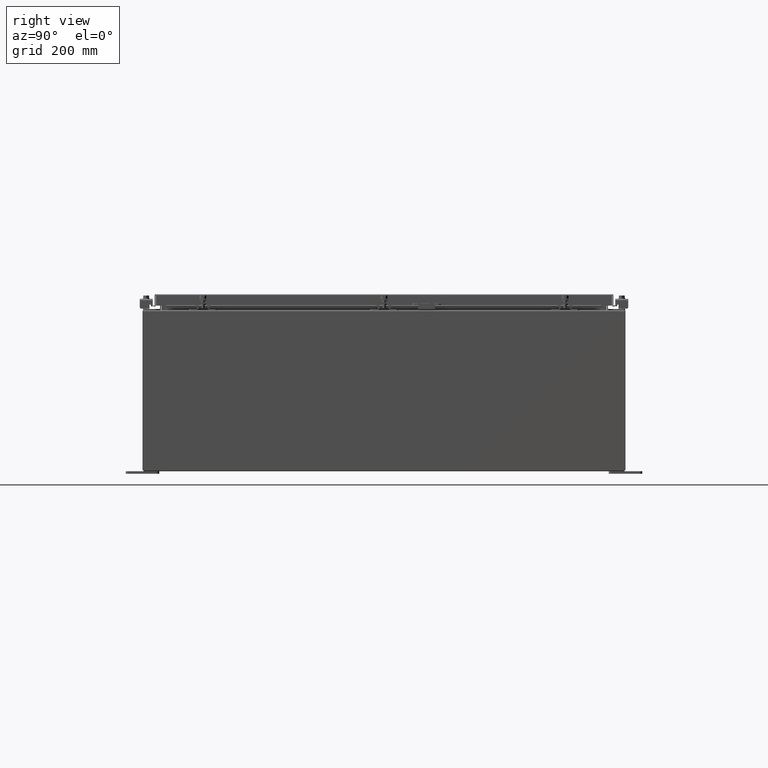
[diagram: clean part render]
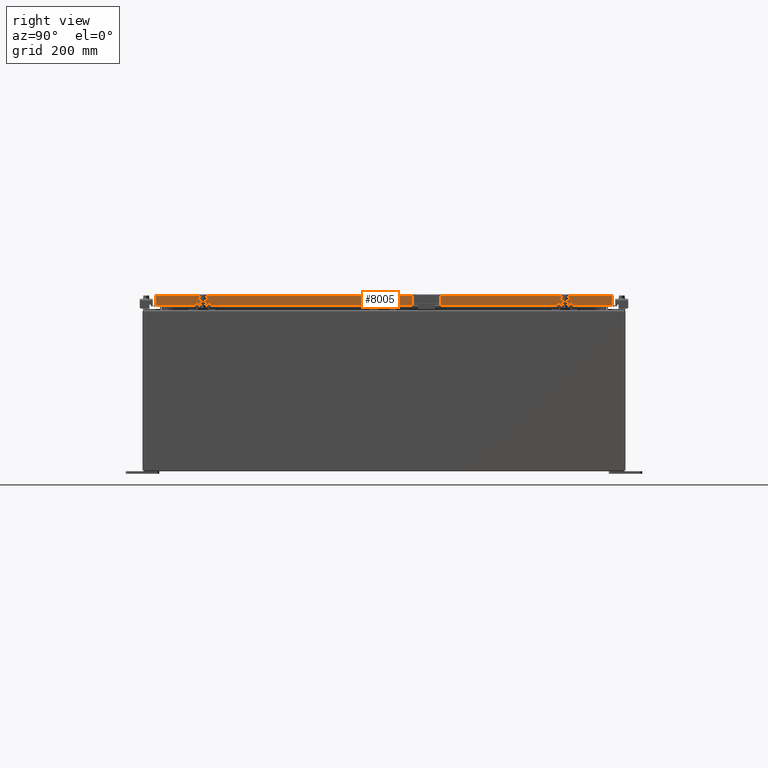
[diagram: same view with one face highlighted and labeled with its STEP entity id]
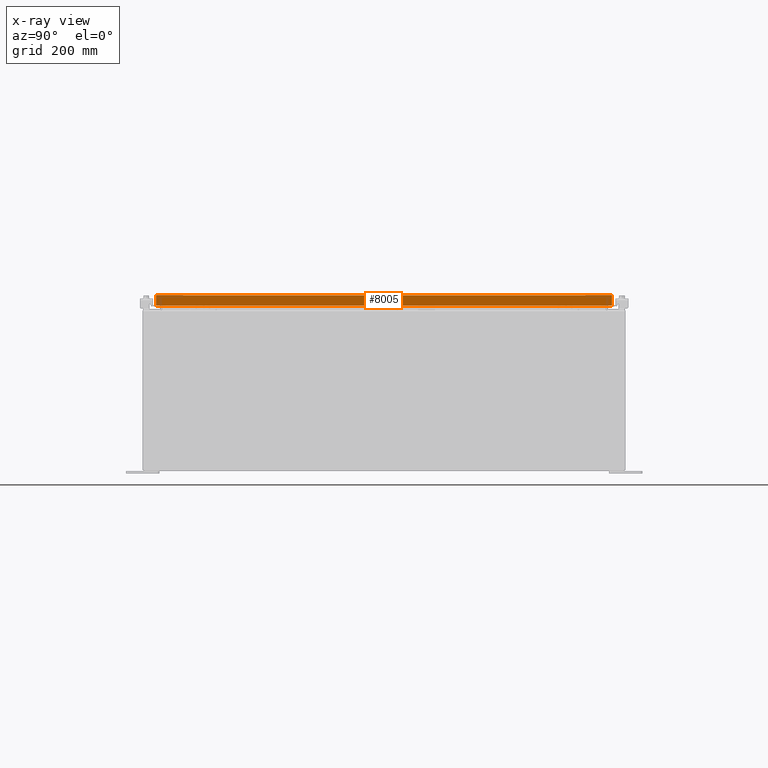
[diagram: x-ray of the same camera — body ghosted, the highlighted face saturated]
A machine part, right view. The second image highlights one B-rep face of the part: STEP entity #8005.
The next image is the same camera in x-ray: the body ghosted, the highlighted face saturated — about 0% of this face is hidden behind the body in this view.
In plain terms, the highlighted planar face has unit normal (1, 0, 0).
Its self-contained STEP definition (entity closure, byte-faithful):
#308 = FACE_OUTER_BOUND ( 'NONE', #27131, .T. ) ;
#695 = LINE ( 'NONE', #4171, #19203 ) ;
#1426 = ORIENTED_EDGE ( 'NONE', *, *, #26398, .T. ) ;
#2315 = DIRECTION ( 'NONE',  ( -2.818880942772360500E-015, -6.982962677686269100E-015, 1.000000000000000000 ) ) ;
#2433 = VECTOR ( 'NONE', #23654, 39.37007874015748100 ) ;
#3897 = LINE ( 'NONE', #16305, #39787 ) ;
#4171 = CARTESIAN_POINT ( 'NONE',  ( 17.07800000000000300, -17.09399999999999800, -0.8499999999999996400 ) ) ;
#4411 = VERTEX_POINT ( 'NONE', #37508 ) ;
#5430 = DIRECTION ( 'NONE',  ( -2.818880942772360500E-015, -6.982962677686269100E-015, 1.000000000000000000 ) ) ;
#7030 = VECTOR ( 'NONE', #29780, 39.37007874015748100 ) ;
#8005 = ADVANCED_FACE ( 'NONE', ( #308 ), #28022, .T. ) ;
#8379 = VERTEX_POINT ( 'NONE', #22734 ) ;
#8437 = EDGE_CURVE ( 'NONE', #18121, #43695, #19847, .T. ) ;
#8903 = ORIENTED_EDGE ( 'NONE', *, *, #18179, .F. ) ;
#9713 = EDGE_CURVE ( 'NONE', #8379, #18121, #695, .T. ) ;
#9725 = VECTOR ( 'NONE', #5430, 39.37007874015748100 ) ;
#10601 = VECTOR ( 'NONE', #2315, 39.37007874015748100 ) ;
#12520 = CARTESIAN_POINT ( 'NONE',  ( 17.07799999999999900, 0.0000000000000000000, -0.08770000000000007000 ) ) ;
#12998 = CARTESIAN_POINT ( 'NONE',  ( 17.07799999999999900, 0.0000000000000000000, 4.840166239667794100E-014 ) ) ;
#13722 = VERTEX_POINT ( 'NONE', #26768 ) ;
#16305 = CARTESIAN_POINT ( 'NONE',  ( 17.07800000000000300, -17.09399999999999800, -0.8499999999999996400 ) ) ;
#18121 = VERTEX_POINT ( 'NONE', #36636 ) ;
#18179 = EDGE_CURVE ( 'NONE', #4411, #13722, #3897, .T. ) ;
#18290 = ORIENTED_EDGE ( 'NONE', *, *, #43226, .F. ) ;
#19203 = VECTOR ( 'NONE', #38812, 39.37007874015748100 ) ;
#19813 = DIRECTION ( 'NONE',  ( 2.818880942772360100E-015, 0.0000000000000000000, -1.000000000000000000 ) ) ;
#19847 = LINE ( 'NONE', #40304, #10601 ) ;
#21266 = CARTESIAN_POINT ( 'NONE',  ( 17.07799999999999900, 17.00515786437627200, -0.08770000000000007000 ) ) ;
#21391 = VERTEX_POINT ( 'NONE', #21266 ) ;
#22734 = CARTESIAN_POINT ( 'NONE',  ( 17.07799999999999600, -16.25515786437626200, -0.8500000000000016400 ) ) ;
#23325 = DIRECTION ( 'NONE',  ( 1.000000000000000000, 0.0000000000000000000, 2.818880942772360100E-015 ) ) ;
#23654 = DIRECTION ( 'NONE',  ( 0.0000000000000000000, -1.000000000000000000, 0.0000000000000000000 ) ) ;
#26398 = EDGE_CURVE ( 'NONE', #4411, #21391, #38494, .T. ) ;
#26768 = CARTESIAN_POINT ( 'NONE',  ( 17.07799999999999600, 16.25515786437628000, -0.8500000000000016400 ) ) ;
#26830 = AXIS2_PLACEMENT_3D ( 'NONE', #12998, #23325, #19813 ) ;
#26908 = ORIENTED_EDGE ( 'NONE', *, *, #40812, .T. ) ;
#27115 = CARTESIAN_POINT ( 'NONE',  ( 17.07799999999999600, 16.25515786437628000, -0.8500000000000016400 ) ) ;
#27131 = EDGE_LOOP ( 'NONE', ( #42317, #37244, #18290, #8903, #1426, #26908 ) ) ;
#28022 = PLANE ( 'NONE',  #26830 ) ;
#29780 = DIRECTION ( 'NONE',  ( 0.0000000000000000000, -1.000000000000000000, 0.0000000000000000000 ) ) ;
#30177 = LINE ( 'NONE', #27115, #2433 ) ;
#36636 = CARTESIAN_POINT ( 'NONE',  ( 17.07800000000000300, -17.00515786437626200, -0.8499999999999996400 ) ) ;
#37062 = DIRECTION ( 'NONE',  ( 0.0000000000000000000, -1.000000000000000000, 0.0000000000000000000 ) ) ;
#37244 = ORIENTED_EDGE ( 'NONE', *, *, #9713, .F. ) ;
#37508 = CARTESIAN_POINT ( 'NONE',  ( 17.07800000000000300, 17.00515786437628000, -0.8499999999999996400 ) ) ;
#38494 = LINE ( 'NONE', #43382, #9725 ) ;
#38812 = DIRECTION ( 'NONE',  ( 0.0000000000000000000, -1.000000000000000000, 0.0000000000000000000 ) ) ;
#39787 = VECTOR ( 'NONE', #37062, 39.37007874015748100 ) ;
#40304 = CARTESIAN_POINT ( 'NONE',  ( 17.07799999999999900, -17.00515786437626900, -0.07469999999999978000 ) ) ;
#40812 = EDGE_CURVE ( 'NONE', #21391, #43695, #42868, .T. ) ;
#42317 = ORIENTED_EDGE ( 'NONE', *, *, #8437, .F. ) ;
#42868 = LINE ( 'NONE', #12520, #7030 ) ;
#43226 = EDGE_CURVE ( 'NONE', #13722, #8379, #30177, .T. ) ;
#43316 = CARTESIAN_POINT ( 'NONE',  ( 17.07799999999999900, -17.00515786437626900, -0.08770000000000007000 ) ) ;
#43382 = CARTESIAN_POINT ( 'NONE',  ( 17.07799999999999900, 17.00515786437627600, 1.671480450917806100E-013 ) ) ;
#43695 = VERTEX_POINT ( 'NONE', #43316 ) ;